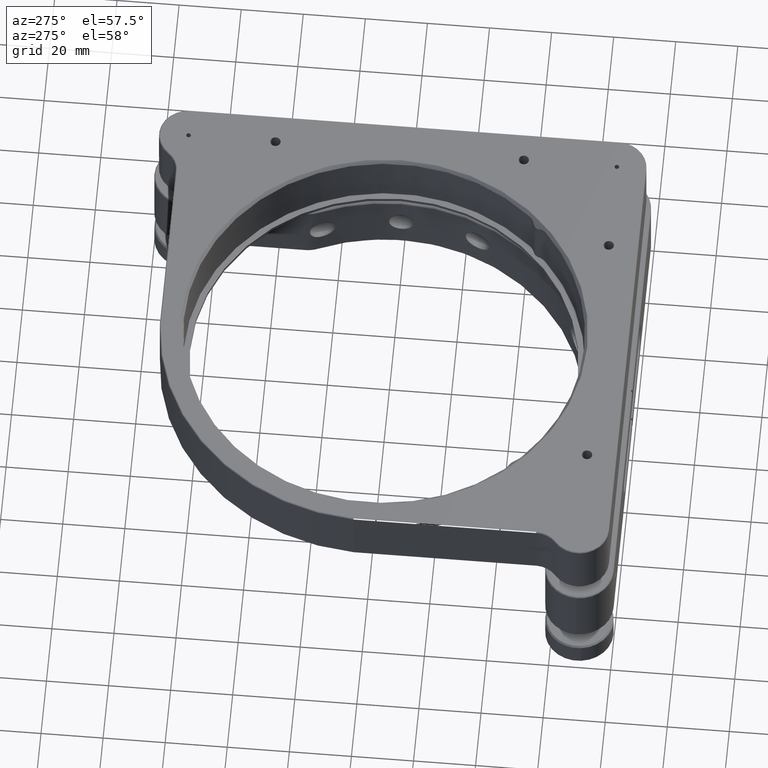
[diagram: clean part render]
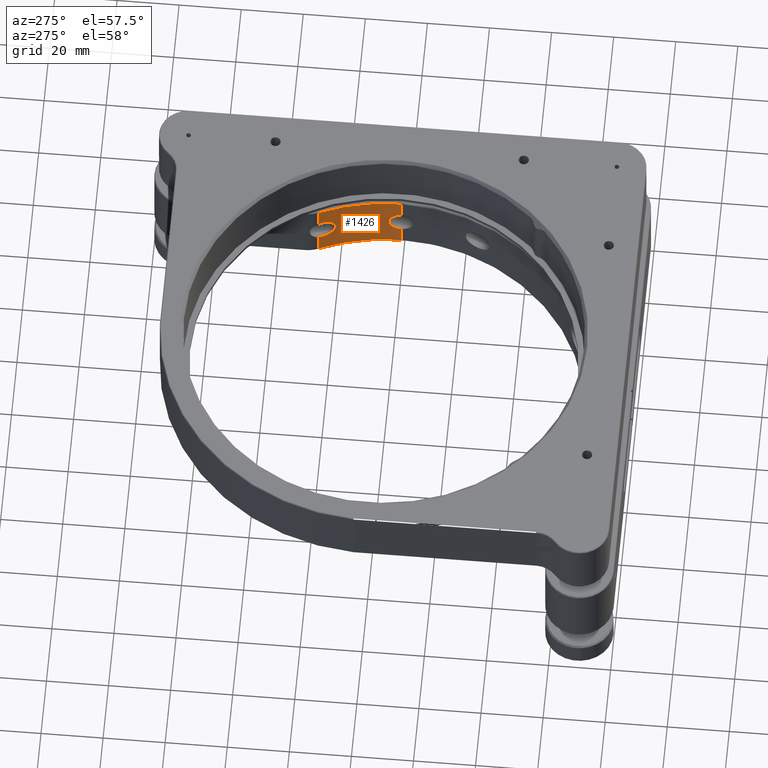
[diagram: same view with one face highlighted and labeled with its STEP entity id]
A machine part, auxiliary view. The second image highlights one B-rep face of the part: STEP entity #1426.
In plain terms, the highlighted cylindrical surface (partial cylindrical patch) has radius 64.5 mm, axis along (-0, -0, 1).
Its self-contained STEP definition (entity closure, byte-faithful):
#10 = B_SPLINE_CURVE_WITH_KNOTS ( 'NONE', 3,
 ( #14399, #16985, #11530, #8935, #17068, #4819, #6079, #8762, #5012, #3209, #8674, #7335, #12793, #10280, #520, #7604, #3480, #4735, #10195, #15734, #2221, #7686, #5989, #11436, #12880, #1869, #2139, #13063, #10376, #7421, #14304, #790, #10104, #14486 ),
 .UNSPECIFIED., .F., .F.,
 ( 4, 2, 2, 2, 2, 2, 2, 2, 2, 2, 2, 2, 2, 2, 2, 2, 4 ),
 ( 0.01250882470707812000, 0.01329044715167124191, 0.01407206959626436382, 0.01485369204085748573, 0.01563531448545060765, 0.01641693693004372956, 0.01719855937463685147, 0.01798018181922997338, 0.01876180426382309530, 0.01954342670841621721, 0.02032504915300933912, 0.02110667159760246103, 0.02188829404219558294, 0.02266991648678870486, 0.02345153893138182677, 0.02423316137597494868, 0.02501478382056807059 ),
 .UNSPECIFIED. ) ;
#123 = CARTESIAN_POINT ( 'NONE',  ( 59.96448482921481116, 23.76078242960121401, 3.811664231138306214 ) ) ;
#149 = ORIENTED_EDGE ( 'NONE', *, *, #5003, .T. ) ;
#343 = EDGE_LOOP ( 'NONE', ( #13853, #11053, #149, #13719, #6942, #13834, #5601, #6609, #8316, #10153 ) ) ;
#520 = CARTESIAN_POINT ( 'NONE',  ( 64.38371271894409631, 3.871711116179418877, -1.038175409937243554 ) ) ;
#790 = CARTESIAN_POINT ( 'NONE',  ( 64.49837582446470208, 0.5257870283741189477, 3.974059800872914217 ) ) ;
#1294 = CARTESIAN_POINT ( 'NONE',  ( 58.87248322147654278, 26.34920718611782320, -11.00000000000000000 ) ) ;
#1426 = ADVANCED_FACE ( 'NONE', ( #15388 ), #11635, .F. ) ;
#1869 = CARTESIAN_POINT ( 'NONE',  ( 64.44596714191385445, 2.646014056816143434, 3.011098952524620120 ) ) ;
#2003 = DIRECTION ( 'NONE',  ( 1.000000000000000000, 0.000000000000000000, 0.000000000000000000 ) ) ;
#2119 = EDGE_CURVE ( 'NONE', #6148, #9508, #12655, .T. ) ;
#2139 = CARTESIAN_POINT ( 'NONE',  ( 64.45401657771111559, 2.444876057769277633, 3.176724142946913076 ) ) ;
#2221 = CARTESIAN_POINT ( 'NONE',  ( 64.38824355788729292, 3.796601520070448821, 1.286340591259432786 ) ) ;
#2258 = CARTESIAN_POINT ( 'NONE',  ( 58.87248322147653568, 26.34920718611781965, -3.765586271608714952 ) ) ;
#2360 = CARTESIAN_POINT ( 'NONE',  ( 64.50000000000000000, 0.000000000000000000, 10.70000000000003304 ) ) ;
#2564 = VECTOR ( 'NONE', #16085, 1000.000000000000000 ) ;
#2849 = CARTESIAN_POINT ( 'NONE',  ( 58.87248322147653568, 26.34920718611781965, -3.765586271608714952 ) ) ;
#2886 = CARTESIAN_POINT ( 'NONE',  ( 60.97638098132922835, 21.02698878883042966, -0.5370107727638140371 ) ) ;
#3068 = CARTESIAN_POINT ( 'NONE',  ( 60.23873797103196637, 23.05641681776336682, 3.505575621024807464 ) ) ;
#3141 = VERTEX_POINT ( 'NONE', #2849 ) ;
#3209 = CARTESIAN_POINT ( 'NONE',  ( 64.42994856798064518, 3.010952416556432532, -2.646158225914169382 ) ) ;
#3255 = EDGE_CURVE ( 'NONE', #6371, #12366, #11118, .T. ) ;
#3480 = CARTESIAN_POINT ( 'NONE',  ( 64.37586295284894788, 3.999783634452101833, -0.2671797164588737838 ) ) ;
#3521 = CARTESIAN_POINT ( 'NONE',  ( 60.68136029994761316, 21.86432841913070391, -2.497926912786606390 ) ) ;
#3565 = EDGE_CURVE ( 'NONE', #8801, #8045, #10645, .T. ) ;
#4064 = VECTOR ( 'NONE', #17216, 1000.000000000000000 ) ;
#4307 = CARTESIAN_POINT ( 'NONE',  ( 64.50000000000000000, 2.370974895287332187E-14, 3.999999999999994227 ) ) ;
#4411 = CARTESIAN_POINT ( 'NONE',  ( 58.87248322147654278, 26.34920718611782320, -11.00000000000000000 ) ) ;
#4471 = CARTESIAN_POINT ( 'NONE',  ( 59.45796834739645220, 25.00000000000002487, 3.999999999999996447 ) ) ;
#4497 = CARTESIAN_POINT ( 'NONE',  ( 60.40370574134581716, 22.62070858032658904, -3.225808470504571979 ) ) ;
#4498 = DIRECTION ( 'NONE',  ( 0.000000000000000000, 0.000000000000000000, -1.000000000000000000 ) ) ;
#4566 = DIRECTION ( 'NONE',  ( 1.000000000000000000, 0.000000000000000000, 0.000000000000000000 ) ) ;
#4720 = CARTESIAN_POINT ( 'NONE',  ( 64.50000000000000000, 0.000000000000000000, -11.00000000000000000 ) ) ;
#4735 = CARTESIAN_POINT ( 'NONE',  ( 64.37583623006538858, 4.000213710068860173, 0.2606614607014665075 ) ) ;
#4819 = CARTESIAN_POINT ( 'NONE',  ( 64.47614844507312171, 1.770380628692256098, -3.596332795334542531 ) ) ;
#4835 = DIRECTION ( 'NONE',  ( -0.000000000000000000, -0.000000000000000000, 1.000000000000000000 ) ) ;
#4981 = AXIS2_PLACEMENT_3D ( 'NONE', #17080, #4835, #4566 ) ;
#5003 = EDGE_CURVE ( 'NONE', #10761, #8801, #10, .T. ) ;
#5012 = CARTESIAN_POINT ( 'NONE',  ( 64.44613431564141592, 2.641946005826723010, -3.014649086317751525 ) ) ;
#5432 = CARTESIAN_POINT ( 'NONE',  ( 64.50000000000000000, 2.402658685813380001E-14, -3.999999999999994227 ) ) ;
#5498 = CARTESIAN_POINT ( 'NONE',  ( 60.14934363930181860, 23.28885317616905937, 3.624420083960675054 ) ) ;
#5601 = ORIENTED_EDGE ( 'NONE', *, *, #15820, .T. ) ;
#5672 = CARTESIAN_POINT ( 'NONE',  ( 60.78868590129170713, 21.56412376416812648, 2.065165652656233419 ) ) ;
#5989 = CARTESIAN_POINT ( 'NONE',  ( 64.40657794858772434, 3.473291743564332013, 2.001114599261276439 ) ) ;
#6028 = CARTESIAN_POINT ( 'NONE',  ( 60.23895457094647554, 23.05585557212312153, -3.505306033952793943 ) ) ;
#6079 = CARTESIAN_POINT ( 'NONE',  ( 64.46927438414029155, 2.002658525779783538, -3.472558023559610074 ) ) ;
#6143 = CIRCLE ( 'NONE', #16135, 64.50000000000000000 ) ;
#6148 = VERTEX_POINT ( 'NONE', #15777 ) ;
#6349 = B_SPLINE_CURVE_WITH_KNOTS ( 'NONE', 3,
 ( #17194, #11930, #17292, #2258 ),
 .UNSPECIFIED., .F., .F.,
 ( 4, 4 ),
 ( 0.01694788674403597054, 0.01843579961038266379 ),
 .UNSPECIFIED. ) ;
#6371 = VERTEX_POINT ( 'NONE', #8862 ) ;
#6609 = ORIENTED_EDGE ( 'NONE', *, *, #11643, .T. ) ;
#6765 = CARTESIAN_POINT ( 'NONE',  ( 60.97575452633510196, 21.02880691775154176, 0.5497219341261861958 ) ) ;
#6942 = ORIENTED_EDGE ( 'NONE', *, *, #16204, .T. ) ;
#7025 = CARTESIAN_POINT ( 'NONE',  ( 60.93885767496139749, 21.13548959396510440, -1.067126035570092002 ) ) ;
#7290 = CARTESIAN_POINT ( 'NONE',  ( 60.15137237262654679, 23.28363080421125275, -3.622073692564338199 ) ) ;
#7301 = EDGE_CURVE ( 'NONE', #12366, #10761, #9179, .T. ) ;
#7335 = CARTESIAN_POINT ( 'NONE',  ( 64.40672399359755218, 3.470603170637430512, -2.005816507284808203 ) ) ;
#7369 = CARTESIAN_POINT ( 'NONE',  ( 59.56385714777822216, 24.74816268234236460, -3.999999999999990674 ) ) ;
#7421 = CARTESIAN_POINT ( 'NONE',  ( 64.48746205220574268, 1.294269094188660763, 3.793773685848544019 ) ) ;
#7587 = DIRECTION ( 'NONE',  ( -0.000000000000000000, -0.000000000000000000, 1.000000000000000000 ) ) ;
#7604 = CARTESIAN_POINT ( 'NONE',  ( 64.37749811500258090, 3.973706946355015646, -0.5268854272377809789 ) ) ;
#7686 = CARTESIAN_POINT ( 'NONE',  ( 64.39975734130834439, 3.596018069005598061, 1.771301574071495466 ) ) ;
#7840 = DIRECTION ( 'NONE',  ( 0.000000000000000000, 0.000000000000000000, 1.000000000000000000 ) ) ;
#8045 = VERTEX_POINT ( 'NONE', #2360 ) ;
#8316 = ORIENTED_EDGE ( 'NONE', *, *, #11745, .T. ) ;
#8445 = CARTESIAN_POINT ( 'NONE',  ( 59.86817584863162267, 24.00255767558760311, 3.881819313162735430 ) ) ;
#8529 = CARTESIAN_POINT ( 'NONE',  ( 60.40316853421258969, 22.62213826862078747, 3.226817256591825611 ) ) ;
#8674 = CARTESIAN_POINT ( 'NONE',  ( 64.42173046056737462, 3.179909813423163367, -2.440606442552724520 ) ) ;
#8762 = CARTESIAN_POINT ( 'NONE',  ( 64.45418523667296995, 2.440488939760156573, -3.180143728320318441 ) ) ;
#8795 = CARTESIAN_POINT ( 'NONE',  ( 60.83627442795231133, 21.42919146076340198, -1.822427511237985520 ) ) ;
#8801 = VERTEX_POINT ( 'NONE', #4307 ) ;
#8862 = CARTESIAN_POINT ( 'NONE',  ( 58.87248322147654278, 26.34920718611782320, -10.69999999999997620 ) ) ;
#8883 = CARTESIAN_POINT ( 'NONE',  ( 59.96533875294416305, 23.75864495256096731, -3.811086288293251023 ) ) ;
#8935 = CARTESIAN_POINT ( 'NONE',  ( 64.49219082414100512, 1.036259253957769300, -3.872374586104770255 ) ) ;
#8973 = CARTESIAN_POINT ( 'NONE',  ( 59.45796834739645220, 25.00000000000002487, -3.999999999999989786 ) ) ;
#9179 = LINE ( 'NONE', #4720, #14353 ) ;
#9508 = VERTEX_POINT ( 'NONE', #16443 ) ;
#9525 = CARTESIAN_POINT ( 'NONE',  ( 59.56273282184643136, 24.75083668776890278, 3.999999999999999112 ) ) ;
#9693 = CARTESIAN_POINT ( 'NONE',  ( 60.61738053243173141, 22.04140638547122322, 2.704654069234091907 ) ) ;
#9836 = DIRECTION ( 'NONE',  ( -0.000000000000000000, -0.000000000000000000, -1.000000000000000000 ) ) ;
#9921 = CARTESIAN_POINT ( 'NONE',  ( 0.000000000000000000, 0.000000000000000000, -10.69999999999997620 ) ) ;
#10104 = CARTESIAN_POINT ( 'NONE',  ( 64.50000000000000000, 0.2642969742690973733, 3.999999999999993339 ) ) ;
#10112 = CARTESIAN_POINT ( 'NONE',  ( 58.96913335730916828, 26.13326013845267326, 3.842959962586919964 ) ) ;
#10153 = ORIENTED_EDGE ( 'NONE', *, *, #11296, .T. ) ;
#10195 = CARTESIAN_POINT ( 'NONE',  ( 64.37745382917013615, 3.974419494474870529, 0.5214299164517764984 ) ) ;
#10280 = CARTESIAN_POINT ( 'NONE',  ( 64.38836850893886776, 3.794486399995352421, -1.292466290001029305 ) ) ;
#10376 = CARTESIAN_POINT ( 'NONE',  ( 64.47601102955530905, 1.775358031357994193, 3.593877450345444480 ) ) ;
#10469 = B_SPLINE_CURVE_WITH_KNOTS ( 'NONE', 3,
 ( #16812, #10112, #15566, #11537, #16992, #15987 ),
 .UNSPECIFIED., .F., .F.,
 ( 4, 2, 4 ),
 ( 0.002508315295065944878, 0.003252434585197030818, 0.003996553875328116325 ),
 .UNSPECIFIED. ) ;
#10472 = CARTESIAN_POINT ( 'NONE',  ( 64.50000000000000000, 0.000000000000000000, -11.00000000000000000 ) ) ;
#10645 = LINE ( 'NONE', #10472, #2564 ) ;
#10761 = VERTEX_POINT ( 'NONE', #5432 ) ;
#10885 = VERTEX_POINT ( 'NONE', #15341 ) ;
#10963 = CARTESIAN_POINT ( 'NONE',  ( 60.98554462940805365, 21.00031776820394214, 0.2773856256899625561 ) ) ;
#11048 = CARTESIAN_POINT ( 'NONE',  ( 60.68059969916171781, 21.86642603335895174, 2.500173769251801570 ) ) ;
#11053 = ORIENTED_EDGE ( 'NONE', *, *, #7301, .T. ) ;
#11118 = CIRCLE ( 'NONE', #13410, 64.50000000000000000 ) ;
#11126 = CARTESIAN_POINT ( 'NONE',  ( 60.91029558922183185, 21.21787982265907146, -1.329467044252190089 ) ) ;
#11174 = DIRECTION ( 'NONE',  ( 1.000000000000000000, -2.664535259100375697E-15, 0.000000000000000000 ) ) ;
#11296 = EDGE_CURVE ( 'NONE', #3141, #6371, #12129, .T. ) ;
#11387 = CARTESIAN_POINT ( 'NONE',  ( 60.48106429221027724, 22.41274607168933386, -3.061807048744244142 ) ) ;
#11436 = CARTESIAN_POINT ( 'NONE',  ( 64.42154785279960549, 3.183584588614817079, 2.435775922046808706 ) ) ;
#11530 = CARTESIAN_POINT ( 'NONE',  ( 64.49841537628985577, 0.5205040695361229375, -3.974694163092236554 ) ) ;
#11537 = CARTESIAN_POINT ( 'NONE',  ( 59.26446886865213060, 25.45649923363776423, 3.980471007397447636 ) ) ;
#11591 = CARTESIAN_POINT ( 'NONE',  ( 0.000000000000000000, 0.000000000000000000, 10.70000000000003304 ) ) ;
#11635 = CYLINDRICAL_SURFACE ( 'NONE', #4981, 64.50000000000000000 ) ;
#11643 = EDGE_CURVE ( 'NONE', #15601, #10885, #15720, .T. ) ;
#11745 = EDGE_CURVE ( 'NONE', #10885, #3141, #6349, .T. ) ;
#11930 = CARTESIAN_POINT ( 'NONE',  ( 59.26332792224523871, 25.46291696951064054, -3.999999999999989786 ) ) ;
#12129 = LINE ( 'NONE', #1294, #4064 ) ;
#12296 = CARTESIAN_POINT ( 'NONE',  ( 60.47880069376589063, 22.41885556193416207, 3.066940364597392943 ) ) ;
#12366 = VERTEX_POINT ( 'NONE', #15847 ) ;
#12383 = CARTESIAN_POINT ( 'NONE',  ( 59.45796834739645220, 25.00000000000002487, 3.999999999999996447 ) ) ;
#12653 = CARTESIAN_POINT ( 'NONE',  ( 59.86711496944654698, 24.00519719574113253, -3.882459483971169689 ) ) ;
#12655 = LINE ( 'NONE', #4411, #17507 ) ;
#12793 = CARTESIAN_POINT ( 'NONE',  ( 64.39989493842351465, 3.593557875236592203, -1.776214499395773361 ) ) ;
#12880 = CARTESIAN_POINT ( 'NONE',  ( 64.42976713480601347, 3.014826396358315730, 2.641766282354408357 ) ) ;
#13063 = CARTESIAN_POINT ( 'NONE',  ( 64.46909156612829861, 2.008458258435819488, 3.469162815775035824 ) ) ;
#13410 = AXIS2_PLACEMENT_3D ( 'NONE', #9921, #9836, #11174 ) ;
#13719 = ORIENTED_EDGE ( 'NONE', *, *, #3565, .T. ) ;
#13834 = ORIENTED_EDGE ( 'NONE', *, *, #2119, .T. ) ;
#13853 = ORIENTED_EDGE ( 'NONE', *, *, #3255, .T. ) ;
#13892 = CARTESIAN_POINT ( 'NONE',  ( 60.90933438391586208, 21.22064602301917091, 1.337628670446668222 ) ) ;
#13978 = CARTESIAN_POINT ( 'NONE',  ( 60.83441903217437385, 21.43446509115114651, 1.832956016139483113 ) ) ;
#14304 = CARTESIAN_POINT ( 'NONE',  ( 64.49208241001545616, 1.043188579729969589, 3.870576299111225804 ) ) ;
#14353 = VECTOR ( 'NONE', #7587, 1000.000000000000000 ) ;
#14399 = CARTESIAN_POINT ( 'NONE',  ( 64.50000000000000000, 2.402658685813380001E-14, -3.999999999999994227 ) ) ;
#14486 = CARTESIAN_POINT ( 'NONE',  ( 64.50000000000000000, 2.370974895287332187E-14, 3.999999999999994227 ) ) ;
#15143 = CARTESIAN_POINT ( 'NONE',  ( 60.98576163402866968, 20.99968756978304185, -0.2681439936605100050 ) ) ;
#15234 = CARTESIAN_POINT ( 'NONE',  ( 59.66745787244813926, 24.49725954983978227, 3.976262618382382819 ) ) ;
#15341 = CARTESIAN_POINT ( 'NONE',  ( 59.45796834739645220, 25.00000000000002487, -3.999999999999989786 ) ) ;
#15388 = FACE_OUTER_BOUND ( 'NONE', #343, .T. ) ;
#15566 = CARTESIAN_POINT ( 'NONE',  ( 59.06839228601498348, 25.90821599919766527, 3.902266609272735831 ) ) ;
#15601 = VERTEX_POINT ( 'NONE', #4471 ) ;
#15720 = B_SPLINE_CURVE_WITH_KNOTS ( 'NONE', 3,
 ( #12383, #9525, #15234, #8445, #123, #5498, #3068, #8529, #12296, #9693, #11048, #5672, #13978, #13892, #16575, #6765, #10963, #15143, #2886, #7025, #11126, #8795, #17103, #3521, #15770, #11387, #4497, #6028, #7290, #8883, #12653, #16844, #7369, #8973 ),
 .UNSPECIFIED., .F., .F.,
 ( 4, 2, 2, 2, 2, 2, 2, 2, 2, 2, 2, 2, 2, 2, 2, 2, 4 ),
 ( 0.003996553875328116325, 0.004806012179622357050, 0.005615470483916598643, 0.006424928788210839369, 0.007234387092505080094, 0.008043845396799319952, 0.008853303701093561545, 0.009662762005387803138, 0.01047222030968204473, 0.01128167861397628459, 0.01209113691827052445, 0.01290059522256476604, 0.01371005352685900763, 0.01451951183115324923, 0.01532897013544749082, 0.01613842843974172894, 0.01694788674403597054 ),
 .UNSPECIFIED. ) ;
#15734 = CARTESIAN_POINT ( 'NONE',  ( 64.38362403349084673, 3.873180625673475319, 1.032652563421217362 ) ) ;
#15770 = CARTESIAN_POINT ( 'NONE',  ( 60.61944673419696272, 22.03572104634550755, -2.698443176763210882 ) ) ;
#15777 = CARTESIAN_POINT ( 'NONE',  ( 58.87248322147654278, 26.34920718611782320, 10.70000000000003304 ) ) ;
#15820 = EDGE_CURVE ( 'NONE', #9508, #15601, #10469, .T. ) ;
#15847 = CARTESIAN_POINT ( 'NONE',  ( 64.50000000000000000, 0.000000000000000000, -10.69999999999997620 ) ) ;
#15987 = CARTESIAN_POINT ( 'NONE',  ( 59.45796834739645220, 25.00000000000002487, 3.999999999999996447 ) ) ;
#16085 = DIRECTION ( 'NONE',  ( -0.000000000000000000, -0.000000000000000000, 1.000000000000000000 ) ) ;
#16135 = AXIS2_PLACEMENT_3D ( 'NONE', #11591, #7840, #2003 ) ;
#16204 = EDGE_CURVE ( 'NONE', #8045, #6148, #6143, .T. ) ;
#16443 = CARTESIAN_POINT ( 'NONE',  ( 58.87248322147654278, 26.34920718611782320, 3.765586271608848179 ) ) ;
#16575 = CARTESIAN_POINT ( 'NONE',  ( 60.93785681797780995, 21.13837663756577712, 1.077234286522537943 ) ) ;
#16812 = CARTESIAN_POINT ( 'NONE',  ( 58.87248322147654278, 26.34920718611782320, 3.765586271608848179 ) ) ;
#16844 = CARTESIAN_POINT ( 'NONE',  ( 59.66681283569593575, 24.49882432284007194, -3.976423921648986060 ) ) ;
#16985 = CARTESIAN_POINT ( 'NONE',  ( 64.50000000000001421, 0.2610323619897666481, -3.999999999999994671 ) ) ;
#16992 = CARTESIAN_POINT ( 'NONE',  ( 59.36166040176775738, 25.22905099131179085, 4.000000000000000000 ) ) ;
#17068 = CARTESIAN_POINT ( 'NONE',  ( 64.48756826260157027, 1.288993971225696145, -3.795570008232141745 ) ) ;
#17080 = CARTESIAN_POINT ( 'NONE',  ( 0.000000000000000000, 0.000000000000000000, -11.00000000000000000 ) ) ;
#17103 = CARTESIAN_POINT ( 'NONE',  ( 60.79063247222589439, 21.55864904622783129, -2.056496714722952479 ) ) ;
#17194 = CARTESIAN_POINT ( 'NONE',  ( 59.45796834739645220, 25.00000000000002487, -3.999999999999989786 ) ) ;
#17216 = DIRECTION ( 'NONE',  ( 0.000000000000000000, 0.000000000000000000, -1.000000000000000000 ) ) ;
#17292 = CARTESIAN_POINT ( 'NONE',  ( 59.06710959960735607, 25.91435014848369178, -3.921395273923570901 ) ) ;
#17507 = VECTOR ( 'NONE', #4498, 1000.000000000000000 ) ;